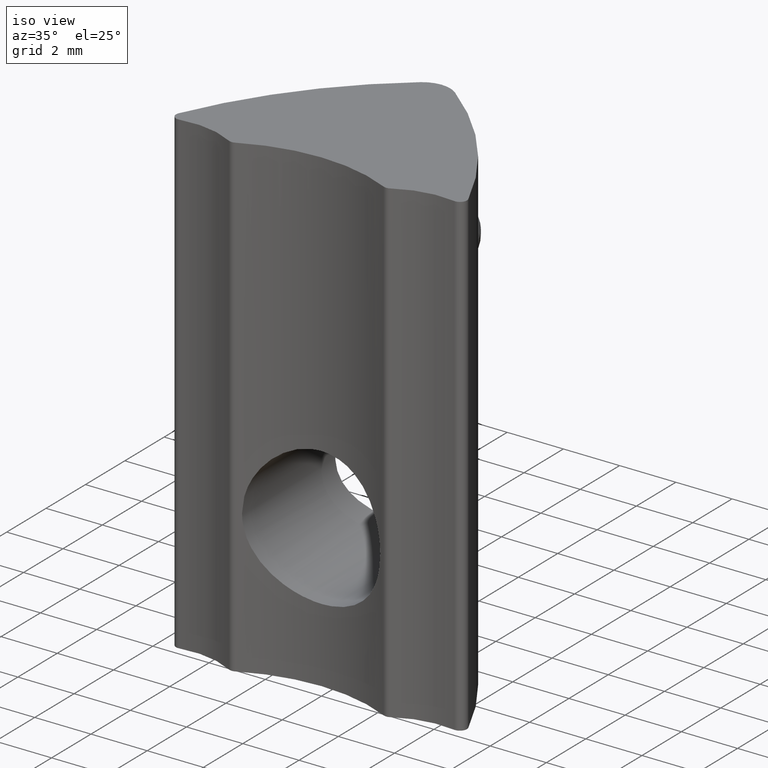
[diagram: clean part render]
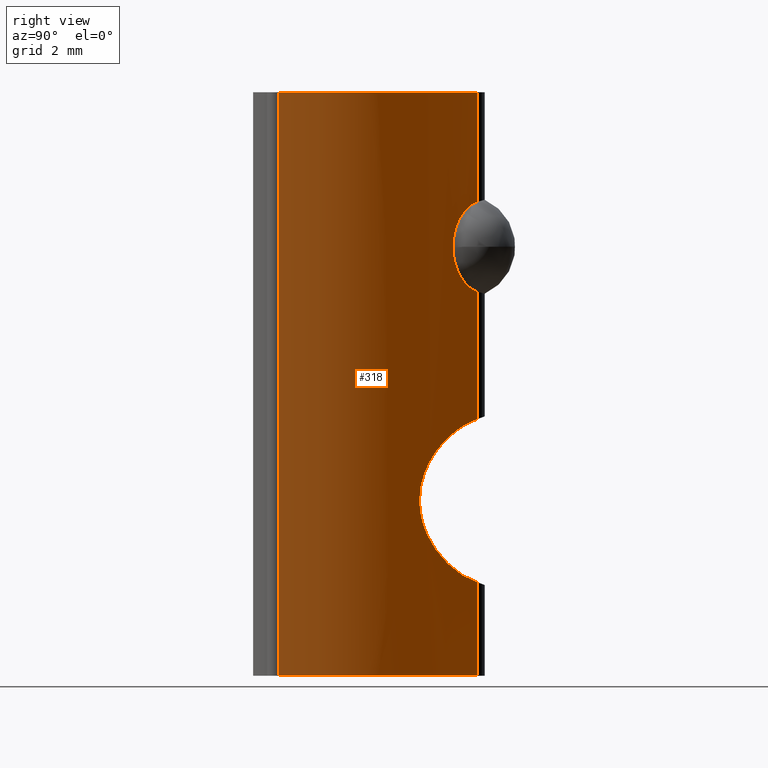
[diagram: tour spotlight — one face highlighted and labeled with its STEP entity id]
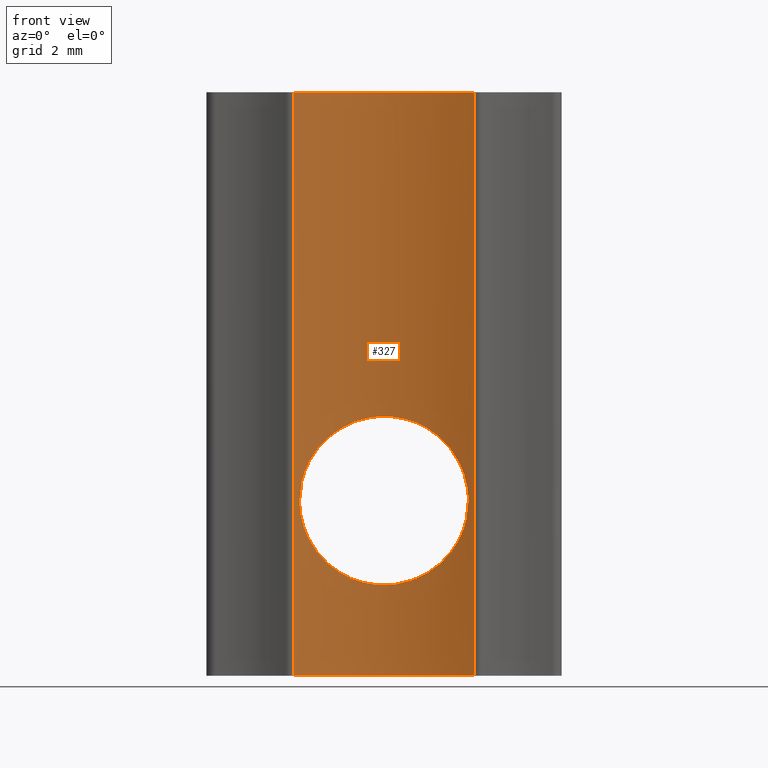
[diagram: tour spotlight — one face highlighted and labeled with its STEP entity id]
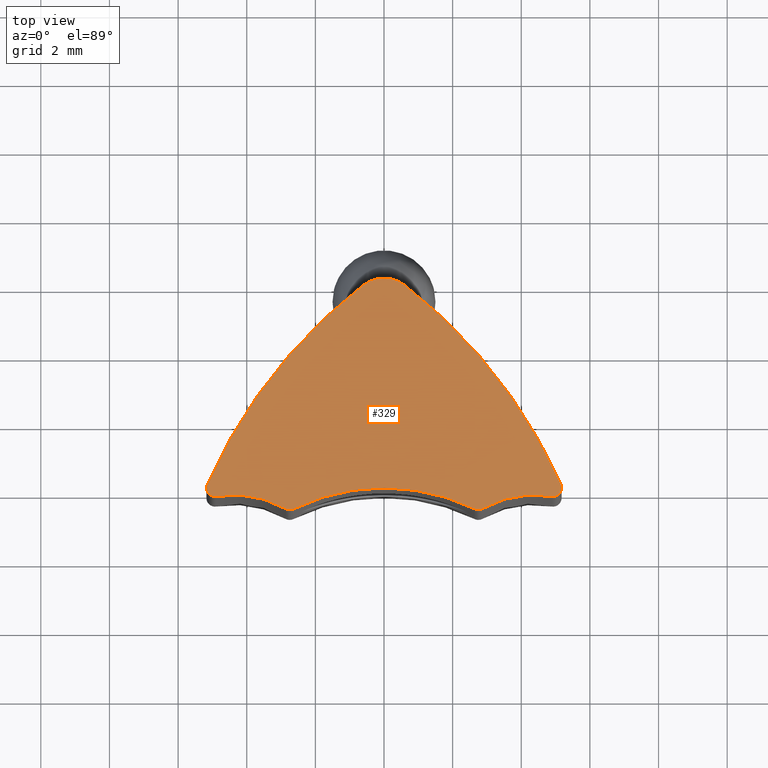
[diagram: tour spotlight — one face highlighted and labeled with its STEP entity id]
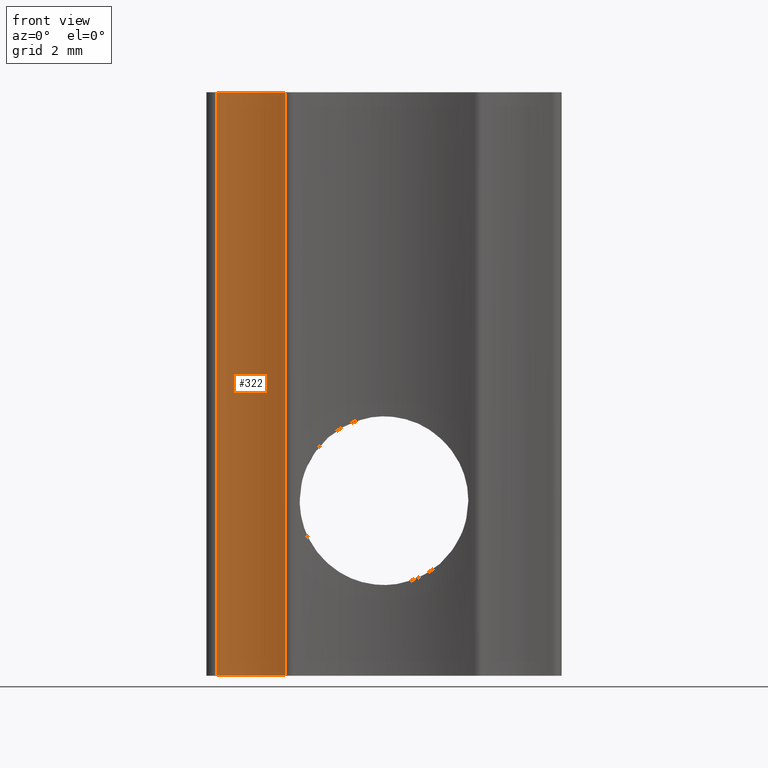
[diagram: tour spotlight — one face highlighted and labeled with its STEP entity id]
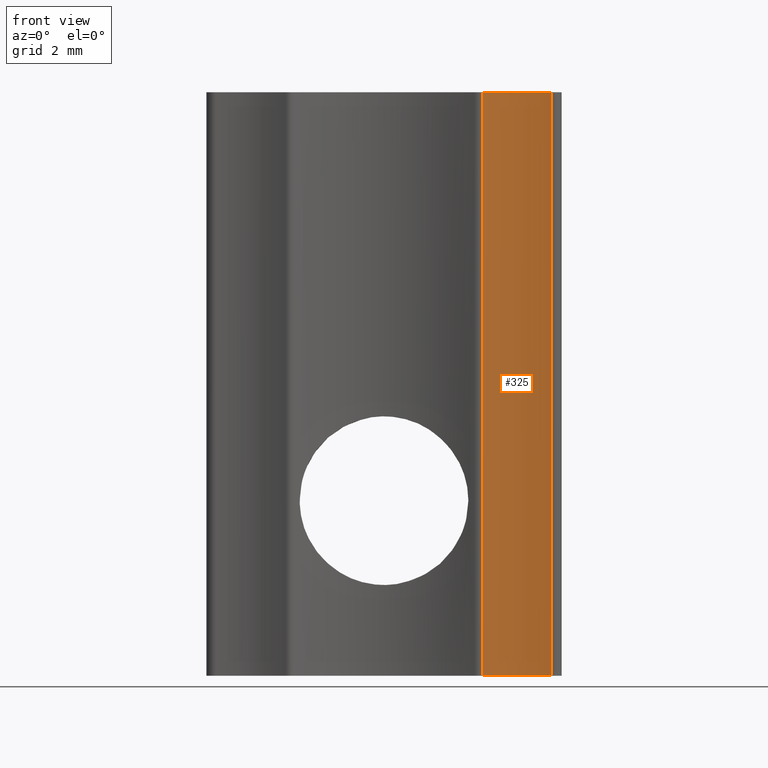
[diagram: tour spotlight — one face highlighted and labeled with its STEP entity id]
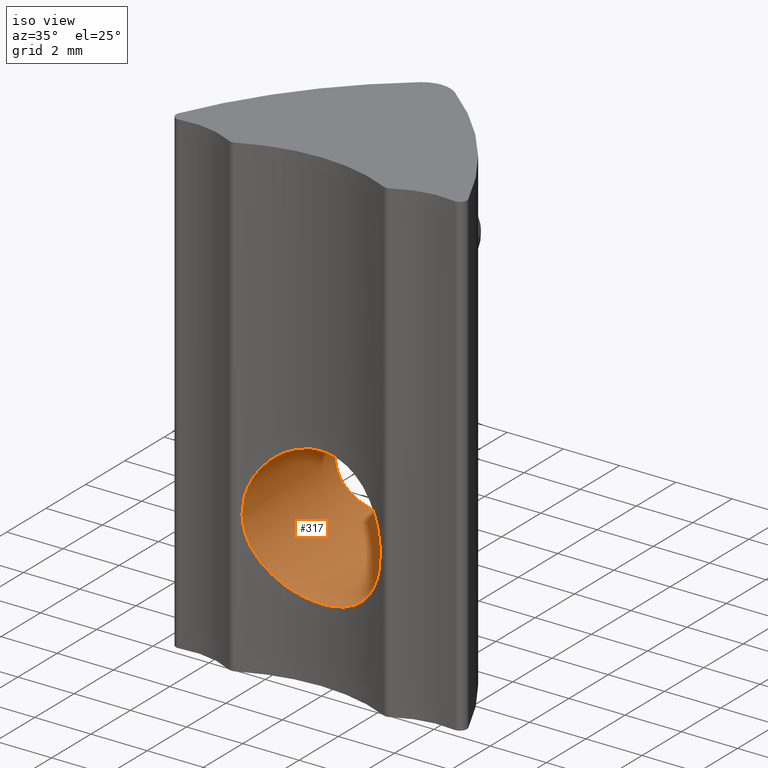
[diagram: tour spotlight — one face highlighted and labeled with its STEP entity id]
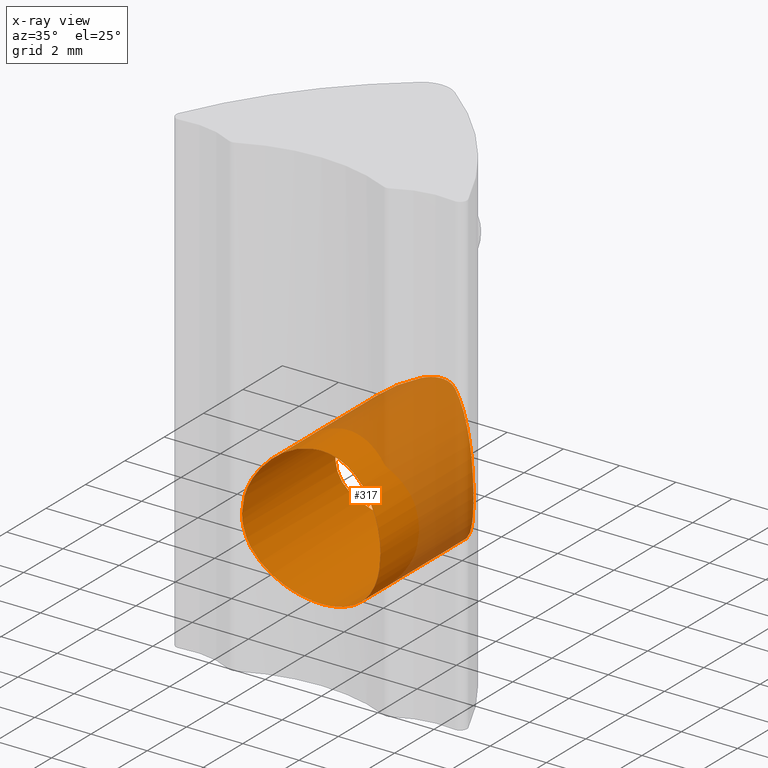
[diagram: x-ray of the same camera — body ghosted, this tour face saturated]
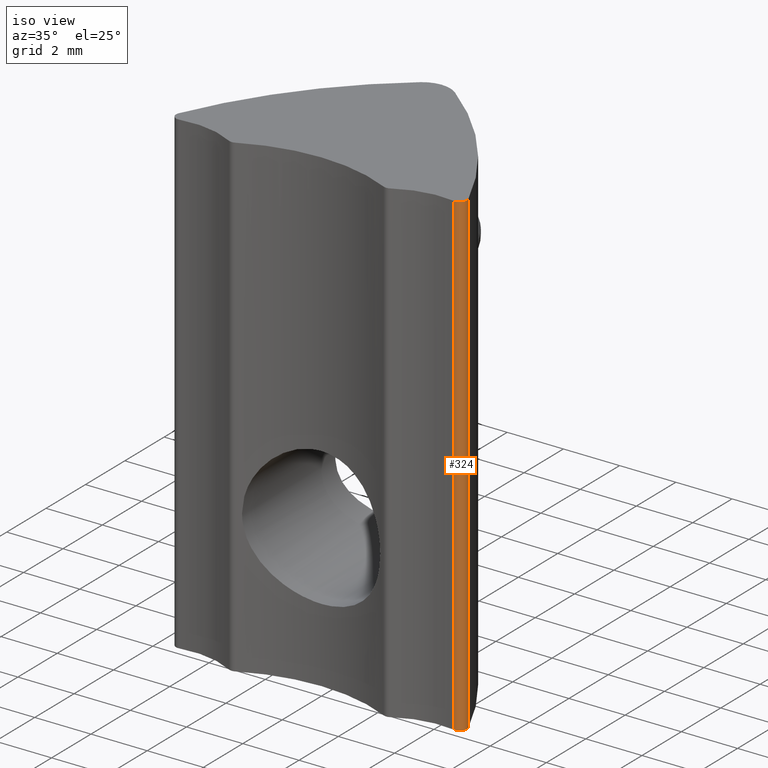
[diagram: tour spotlight — one face highlighted and labeled with its STEP entity id]
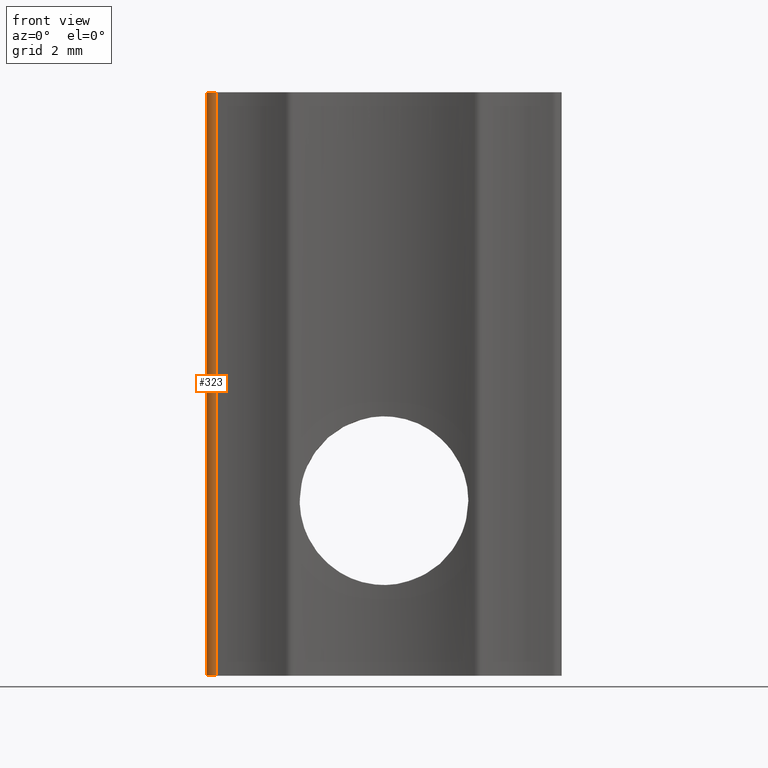
[diagram: tour spotlight — one face highlighted and labeled with its STEP entity id]
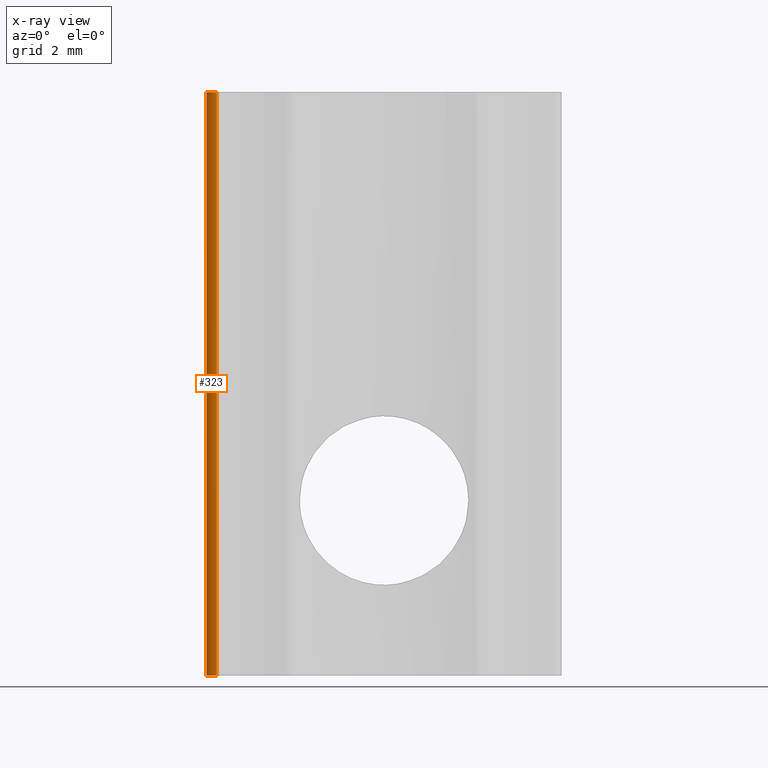
[diagram: x-ray of the same camera — body ghosted, this tour face saturated]
A machine part: a face-by-face anatomy tour. The part has 16 B-rep faces; the first image is the clean iso view, then the 8 largest visible faces are spotlighted one at a time (largest first), each with its STEP entity span.

Face 1 — right view, entity #318. In plain terms, the highlighted cylindrical surface (partial cylindrical patch) has radius 15 mm, axis along (0, 0, 1).
Definition (entity closure, byte-faithful):
#20=LINE('',#585,#35);
#22=LINE('',#680,#37);
#23=LINE('',#684,#38);
#24=LINE('',#687,#39);
#35=VECTOR('',#408,10.);
#37=VECTOR('',#414,10.);
#38=VECTOR('',#417,10.);
#39=VECTOR('',#420,10.);
#49=CYLINDRICAL_SURFACE('',#360,15.);
#61=B_SPLINE_CURVE_WITH_KNOTS('',3,(#488,#489,#490,#491,#492,#493,#494,
#495,#496,#497,#498,#499,#500,#501,#502,#503,#504,#505),.UNSPECIFIED.,.F.,
 .F.,(4,2,2,2,2,2,2,2,4),(0.224927419825381,0.268885237807746,0.310193641972784,
0.356110090594977,0.40202653921717,0.447942987839362,0.493859436461555,
0.535167840626593,0.579125658608958),.UNSPECIFIED.);
#68=B_SPLINE_CURVE_WITH_KNOTS('',3,(#601,#602,#603,#604,#605,#606,#607,
#608,#609,#610,#611,#612),.UNSPECIFIED.,.F.,.F.,(4,2,2,2,2,4),(0.831506789486782,
0.878376412105094,0.925246034723407,1.01898527996003,1.1408115051664,1.18878506140481),
 .UNSPECIFIED.);
#71=B_SPLINE_CURVE_WITH_KNOTS('',3,(#653,#654,#655,#656,#657,#658,#659,
#660,#661,#662,#663,#664),.UNSPECIFIED.,.F.,.F.,(4,2,2,2,2,4),(0.474228517568755,
0.522202073807163,0.644028299013532,0.737767544250157,0.784637166868469,
0.831506789486782),.UNSPECIFIED.);
#78=FACE_OUTER_BOUND('',#95,.T.);
#95=EDGE_LOOP('',(#243,#244,#245,#246,#247,#248,#249,#250,#251));
#111=CIRCLE('',#361,15.);
#112=CIRCLE('',#362,15.);
#131=VERTEX_POINT('',#486);
#132=VERTEX_POINT('',#487);
#141=VERTEX_POINT('',#584);
#143=VERTEX_POINT('',#600);
#146=VERTEX_POINT('',#652);
#148=VERTEX_POINT('',#679);
#149=VERTEX_POINT('',#681);
#150=VERTEX_POINT('',#683);
#151=VERTEX_POINT('',#685);
#165=EDGE_CURVE('',#131,#132,#61,.T.);
#176=EDGE_CURVE('',#141,#131,#20,.T.);
#179=EDGE_CURVE('',#143,#141,#68,.T.);
#183=EDGE_CURVE('',#146,#143,#71,.T.);
#186=EDGE_CURVE('',#132,#148,#22,.T.);
#187=EDGE_CURVE('',#149,#148,#111,.T.);
#188=EDGE_CURVE('',#150,#149,#23,.T.);
#189=EDGE_CURVE('',#151,#150,#112,.T.);
#190=EDGE_CURVE('',#151,#146,#24,.T.);
#243=ORIENTED_EDGE('',*,*,#165,.T.);
#244=ORIENTED_EDGE('',*,*,#186,.T.);
#245=ORIENTED_EDGE('',*,*,#187,.F.);
#246=ORIENTED_EDGE('',*,*,#188,.F.);
#247=ORIENTED_EDGE('',*,*,#189,.F.);
#248=ORIENTED_EDGE('',*,*,#190,.T.);
#249=ORIENTED_EDGE('',*,*,#183,.T.);
#250=ORIENTED_EDGE('',*,*,#179,.T.);
#251=ORIENTED_EDGE('',*,*,#176,.T.);
#318=ADVANCED_FACE('',(#78),#49,.T.);
#360=AXIS2_PLACEMENT_3D('',#678,#412,#413);
#361=AXIS2_PLACEMENT_3D('',#682,#415,#416);
#362=AXIS2_PLACEMENT_3D('',#686,#418,#419);
#408=DIRECTION('',(0.,0.,1.));
#412=DIRECTION('center_axis',(0.,0.,1.));
#413=DIRECTION('ref_axis',(-0.914724473440414,-0.404078133148971,0.));
#414=DIRECTION('',(0.,0.,1.));
#415=DIRECTION('center_axis',(0.,0.,1.));
#416=DIRECTION('ref_axis',(-0.914724473440414,-0.404078133148971,0.));
#417=DIRECTION('',(0.,0.,1.));
#418=DIRECTION('center_axis',(0.,0.,-1.));
#419=DIRECTION('ref_axis',(-0.914724473440414,-0.404078133148971,0.));
#420=DIRECTION('',(0.,0.,1.));
#486=CARTESIAN_POINT('',(0.611941855946153,5.9033888333115,11.1912583852797));
#487=CARTESIAN_POINT('',(0.611941855946153,5.9033888333115,13.8087416147203));
#488=CARTESIAN_POINT('Ctrl Pts',(0.611941855946152,5.9033888333115,11.1912583852797));
#489=CARTESIAN_POINT('Ctrl Pts',(0.734621195394697,5.80846866472019,11.2193639228349));
#490=CARTESIAN_POINT('Ctrl Pts',(0.855099179531908,5.71189845083683,11.2771450102573));
#491=CARTESIAN_POINT('Ctrl Pts',(1.04605820580299,5.55504918070396,11.4175529376326));
#492=CARTESIAN_POINT('Ctrl Pts',(1.14446349483087,5.47192128164891,11.521033851644));
#493=CARTESIAN_POINT('Ctrl Pts',(1.29158328291991,5.34538174011869,11.7375489539689));
#494=CARTESIAN_POINT('Ctrl Pts',(1.35821350391953,5.28662061536966,11.8783938509476));
#495=CARTESIAN_POINT('Ctrl Pts',(1.44610736328997,5.20843811836978,12.1830866812942));
#496=CARTESIAN_POINT('Ctrl Pts',(1.46743244767338,5.18912701707077,12.3469451712594));
#497=CARTESIAN_POINT('Ctrl Pts',(1.46743244767338,5.18912701707077,12.6530548287406));
#498=CARTESIAN_POINT('Ctrl Pts',(1.44610736328997,5.20843811836978,12.8169133187058));
#499=CARTESIAN_POINT('Ctrl Pts',(1.35821350391953,5.28662061536966,13.1216061490524));
#500=CARTESIAN_POINT('Ctrl Pts',(1.29158328291991,5.34538174011869,13.2624510460311));
#501=CARTESIAN_POINT('Ctrl Pts',(1.14446349483087,5.47192128164891,13.4789661483561));
#502=CARTESIAN_POINT('Ctrl Pts',(1.04605820580299,5.55504918070396,13.5824470623674));
#503=CARTESIAN_POINT('Ctrl Pts',(0.855099179531908,5.71189845083683,13.7228549897427));
#504=CARTESIAN_POINT('Ctrl Pts',(0.734621195394697,5.80846866472019,13.7806360771651));
#505=CARTESIAN_POINT('Ctrl Pts',(0.611941855946152,5.9033888333115,13.8087416147203));
#584=CARTESIAN_POINT('',(0.611941855946153,5.9033888333115,7.48112356146026));
#585=CARTESIAN_POINT('',(0.611941855946153,5.9033888333115,0.));
#600=CARTESIAN_POINT('',(2.4585,4.21011049228199,5.1));
#601=CARTESIAN_POINT('Ctrl Pts',(2.4585,4.21011049228199,5.1));
#602=CARTESIAN_POINT('Ctrl Pts',(2.4585,4.21011049228199,5.25623207539437));
#603=CARTESIAN_POINT('Ctrl Pts',(2.44338085424677,4.22657146188145,5.41424509713069));
#604=CARTESIAN_POINT('Ctrl Pts',(2.38357872607336,4.29083181567065,5.722424647206));
#605=CARTESIAN_POINT('Ctrl Pts',(2.33892792276691,4.33855789103553,5.87261270037443));
#606=CARTESIAN_POINT('Ctrl Pts',(2.16865803096752,4.51690221013729,6.29762858531807));
#607=CARTESIAN_POINT('Ctrl Pts',(2.00493907963629,4.68360351731936,6.54691222213902));
#608=CARTESIAN_POINT('Ctrl Pts',(1.6010327932912,5.07196448957157,6.99674755108));
#609=CARTESIAN_POINT('Ctrl Pts',(1.31423187295748,5.33261972492726,7.20645446882104));
#610=CARTESIAN_POINT('Ctrl Pts',(0.87268596070681,5.6981082650684,7.40244877372032));
#611=CARTESIAN_POINT('Ctrl Pts',(0.743381203158351,5.80169082081,7.44734403007464));
#612=CARTESIAN_POINT('Ctrl Pts',(0.611941855946151,5.9033888333115,7.48112356146026));
#652=CARTESIAN_POINT('',(0.611941855946153,5.9033888333115,2.71887643853974));
#653=CARTESIAN_POINT('Ctrl Pts',(0.611941855946151,5.9033888333115,2.71887643853974));
#654=CARTESIAN_POINT('Ctrl Pts',(0.743381203158351,5.80169082081,2.75265596992536));
#655=CARTESIAN_POINT('Ctrl Pts',(0.872685960706809,5.69810826506841,2.79755122627968));
#656=CARTESIAN_POINT('Ctrl Pts',(1.31423187295748,5.33261972492727,2.99354553117896));
#657=CARTESIAN_POINT('Ctrl Pts',(1.60103279329119,5.07196448957158,3.20325244892));
#658=CARTESIAN_POINT('Ctrl Pts',(2.00493907963629,4.68360351731936,3.65308777786098));
#659=CARTESIAN_POINT('Ctrl Pts',(2.16865803096752,4.51690221013729,3.90237141468192));
#660=CARTESIAN_POINT('Ctrl Pts',(2.33892792276691,4.33855789103553,4.32738729962557));
#661=CARTESIAN_POINT('Ctrl Pts',(2.38357872607336,4.29083181567065,4.477575352794));
#662=CARTESIAN_POINT('Ctrl Pts',(2.44338085424677,4.22657146188145,4.78575490286931));
#663=CARTESIAN_POINT('Ctrl Pts',(2.4585,4.21011049228199,4.94376792460563));
#664=CARTESIAN_POINT('Ctrl Pts',(2.4585,4.21011049228199,5.1));
#678=CARTESIAN_POINT('Origin',(-8.5671859832461,-5.96015246394733,0.));
#679=CARTESIAN_POINT('',(0.611941855946153,5.9033888333115,17.));
#680=CARTESIAN_POINT('',(0.611941855946153,5.9033888333115,0.));
#681=CARTESIAN_POINT('',(5.1536811183601,0.101019533287243,17.));
#682=CARTESIAN_POINT('Origin',(-8.5671859832461,-5.96015246394733,17.));
#683=CARTESIAN_POINT('',(5.1536811183601,0.101019533287243,0.));
#684=CARTESIAN_POINT('',(5.1536811183601,0.101019533287243,0.));
#685=CARTESIAN_POINT('',(0.611941855946153,5.9033888333115,0.));
#686=CARTESIAN_POINT('Origin',(-8.5671859832461,-5.96015246394733,0.));
#687=CARTESIAN_POINT('',(0.611941855946153,5.9033888333115,0.));

Face 2 — front view, entity #327. In plain terms, the highlighted cylindrical surface (partial cylindrical patch) has radius 6 mm, axis along (0, 0, 1).
Definition (entity closure, byte-faithful):
#25=LINE('',#697,#40);
#30=LINE('',#727,#45);
#40=VECTOR('',#433,10.);
#45=VECTOR('',#470,10.);
#58=CYLINDRICAL_SURFACE('',#385,6.);
#60=FACE_BOUND('',#105,.T.);
#69=B_SPLINE_CURVE_WITH_KNOTS('',3,(#616,#617,#618,#619,#620,#621,#622,
#623,#624,#625,#626,#627,#628,#629,#630,#631,#632,#633),.UNSPECIFIED.,.F.,
 .F.,(4,2,2,2,2,2,2,2,4),(0.,0.0938733164659279,0.187746632931856,0.281514503510094,
0.375282374088332,0.46905024466657,0.562818115244808,0.656691431710735,
0.750564748176663),.UNSPECIFIED.);
#70=B_SPLINE_CURVE_WITH_KNOTS('',3,(#634,#635,#636,#637,#638,#639,#640,
#641,#642,#643,#644,#645,#646,#647,#648,#649,#650,#651),.UNSPECIFIED.,.F.,
 .F.,(4,2,2,2,2,2,2,2,4),(0.750564748176663,0.844438064642591,0.938311381108519,
1.03207925168676,1.12584712226499,1.21961499284323,1.31338286342147,1.4072561798874,
1.50112949635333),.UNSPECIFIED.);
#87=FACE_OUTER_BOUND('',#104,.T.);
#104=EDGE_LOOP('',(#285,#286,#287,#288));
#105=EDGE_LOOP('',(#289,#290));
#127=CIRCLE('',#386,6.);
#128=CIRCLE('',#387,6.);
#144=VERTEX_POINT('',#613);
#145=VERTEX_POINT('',#615);
#152=VERTEX_POINT('',#693);
#154=VERTEX_POINT('',#696);
#162=VERTEX_POINT('',#723);
#163=VERTEX_POINT('',#725);
#181=EDGE_CURVE('',#145,#144,#69,.T.);
#182=EDGE_CURVE('',#144,#145,#70,.T.);
#194=EDGE_CURVE('',#152,#154,#25,.T.);
#210=EDGE_CURVE('',#162,#163,#30,.T.);
#211=EDGE_CURVE('',#162,#152,#127,.T.);
#212=EDGE_CURVE('',#154,#163,#128,.T.);
#285=ORIENTED_EDGE('',*,*,#211,.F.);
#286=ORIENTED_EDGE('',*,*,#210,.T.);
#287=ORIENTED_EDGE('',*,*,#212,.F.);
#288=ORIENTED_EDGE('',*,*,#194,.F.);
#289=ORIENTED_EDGE('',*,*,#181,.T.);
#290=ORIENTED_EDGE('',*,*,#182,.T.);
#327=ADVANCED_FACE('',(#87,#60),#58,.F.);
#385=AXIS2_PLACEMENT_3D('',#728,#471,#472);
#386=AXIS2_PLACEMENT_3D('',#729,#473,#474);
#387=AXIS2_PLACEMENT_3D('',#730,#475,#476);
#433=DIRECTION('',(0.,0.,1.));
#470=DIRECTION('',(0.,0.,1.));
#471=DIRECTION('center_axis',(0.,0.,1.));
#472=DIRECTION('ref_axis',(0.44,0.897997772825746,0.));
#473=DIRECTION('center_axis',(0.,0.,1.));
#474=DIRECTION('ref_axis',(0.44,0.897997772825746,0.));
#475=DIRECTION('center_axis',(0.,0.,-1.));
#476=DIRECTION('ref_axis',(0.44,0.897997772825746,0.));
#613=CARTESIAN_POINT('',(2.4585,-0.526812834371551,5.1));
#615=CARTESIAN_POINT('',(-2.4585,-0.526812834371548,5.1));
#616=CARTESIAN_POINT('Ctrl Pts',(-2.4585,-0.526812834371548,5.1));
#617=CARTESIAN_POINT('Ctrl Pts',(-2.4585,-0.526812834371548,5.41291105488643));
#618=CARTESIAN_POINT('Ctrl Pts',(-2.39520706205524,-0.497137099926396,5.74373276968248));
#619=CARTESIAN_POINT('Ctrl Pts',(-2.14327278939724,-0.394208587422375,6.3481154372216));
#620=CARTESIAN_POINT('Ctrl Pts',(-1.95478222574452,-0.322859166779189,6.62206181734973));
#621=CARTESIAN_POINT('Ctrl Pts',(-1.52230485013744,-0.191938809259181,7.05453919295682));
#622=CARTESIAN_POINT('Ctrl Pts',(-1.24826729799008,-0.123301351377166,7.2432135883752));
#623=CARTESIAN_POINT('Ctrl Pts',(-0.643525851930762,-0.0267569323985473,
7.4952892129804));
#624=CARTESIAN_POINT('Ctrl Pts',(-0.312559568594124,1.07828172186431E-16,
7.5585));
#625=CARTESIAN_POINT('Ctrl Pts',(0.312559568594129,-1.07828172186431E-16,
7.5585));
#626=CARTESIAN_POINT('Ctrl Pts',(0.643525851930766,-0.0267569323985483,
7.4952892129804));
#627=CARTESIAN_POINT('Ctrl Pts',(1.24826729799009,-0.123301351377168,7.2432135883752));
#628=CARTESIAN_POINT('Ctrl Pts',(1.52230485013744,-0.191938809259183,7.05453919295682));
#629=CARTESIAN_POINT('Ctrl Pts',(1.95478222574453,-0.322859166779191,6.62206181734973));
#630=CARTESIAN_POINT('Ctrl Pts',(2.14327278939724,-0.394208587422377,6.3481154372216));
#631=CARTESIAN_POINT('Ctrl Pts',(2.39520706205524,-0.497137099926398,5.74373276968248));
#632=CARTESIAN_POINT('Ctrl Pts',(2.4585,-0.52681283437155,5.41291105488643));
#633=CARTESIAN_POINT('Ctrl Pts',(2.4585,-0.52681283437155,5.1));
#634=CARTESIAN_POINT('Ctrl Pts',(2.4585,-0.52681283437155,5.1));
#635=CARTESIAN_POINT('Ctrl Pts',(2.4585,-0.52681283437155,4.78708894511357));
#636=CARTESIAN_POINT('Ctrl Pts',(2.39520706205524,-0.497137099926398,4.45626723031752));
#637=CARTESIAN_POINT('Ctrl Pts',(2.14327278939724,-0.394208587422377,3.8518845627784));
#638=CARTESIAN_POINT('Ctrl Pts',(1.95478222574453,-0.322859166779191,3.57793818265027));
#639=CARTESIAN_POINT('Ctrl Pts',(1.52230485013744,-0.191938809259183,3.14546080704319));
#640=CARTESIAN_POINT('Ctrl Pts',(1.24826729799009,-0.123301351377168,2.9567864116248));
#641=CARTESIAN_POINT('Ctrl Pts',(0.643525851930767,-0.0267569323985481,
2.7047107870196));
#642=CARTESIAN_POINT('Ctrl Pts',(0.312559568594129,-1.39196589600847E-16,
2.6415));
#643=CARTESIAN_POINT('Ctrl Pts',(-0.312559568594124,1.39196589600847E-16,
2.6415));
#644=CARTESIAN_POINT('Ctrl Pts',(-0.643525851930761,-0.0267569323985472,
2.7047107870196));
#645=CARTESIAN_POINT('Ctrl Pts',(-1.24826729799008,-0.123301351377166,2.9567864116248));
#646=CARTESIAN_POINT('Ctrl Pts',(-1.52230485013744,-0.191938809259181,3.14546080704319));
#647=CARTESIAN_POINT('Ctrl Pts',(-1.95478222574452,-0.322859166779189,3.57793818265027));
#648=CARTESIAN_POINT('Ctrl Pts',(-2.14327278939724,-0.394208587422375,3.8518845627784));
#649=CARTESIAN_POINT('Ctrl Pts',(-2.39520706205524,-0.497137099926395,4.45626723031752));
#650=CARTESIAN_POINT('Ctrl Pts',(-2.4585,-0.526812834371547,4.78708894511357));
#651=CARTESIAN_POINT('Ctrl Pts',(-2.4585,-0.526812834371547,5.1));
#693=CARTESIAN_POINT('',(-2.64,-0.612013363045524,0.));
#696=CARTESIAN_POINT('',(-2.64,-0.612013363045524,17.));
#697=CARTESIAN_POINT('',(-2.64,-0.612013363045524,0.));
#723=CARTESIAN_POINT('',(2.64,-0.612013363045523,0.));
#725=CARTESIAN_POINT('',(2.64,-0.612013363045523,17.));
#727=CARTESIAN_POINT('',(2.64,-0.612013363045523,0.));
#728=CARTESIAN_POINT('Origin',(0.,-6.,0.));
#729=CARTESIAN_POINT('Origin',(0.,-6.,0.));
#730=CARTESIAN_POINT('Origin',(0.,-6.,17.));

Face 3 — top view, entity #329. In plain terms, the highlighted planar face has unit normal (0, 0, 1).
Definition (entity closure, byte-faithful):
#15=PLANE('',#389);
#89=FACE_OUTER_BOUND('',#107,.T.);
#107=EDGE_LOOP('',(#301,#302,#303,#304,#305,#306,#307,#308,#309,#310));
#110=CIRCLE('',#357,15.);
#111=CIRCLE('',#361,15.);
#113=CIRCLE('',#364,1.);
#116=CIRCLE('',#369,0.25);
#118=CIRCLE('',#372,3.);
#120=CIRCLE('',#375,0.25);
#122=CIRCLE('',#378,0.25);
#124=CIRCLE('',#381,3.);
#126=CIRCLE('',#384,0.25);
#128=CIRCLE('',#387,6.);
#139=VERTEX_POINT('',#578);
#140=VERTEX_POINT('',#580);
#148=VERTEX_POINT('',#679);
#149=VERTEX_POINT('',#681);
#154=VERTEX_POINT('',#696);
#155=VERTEX_POINT('',#698);
#157=VERTEX_POINT('',#704);
#159=VERTEX_POINT('',#713);
#161=VERTEX_POINT('',#719);
#163=VERTEX_POINT('',#725);
#174=EDGE_CURVE('',#140,#139,#110,.T.);
#187=EDGE_CURVE('',#149,#148,#111,.T.);
#191=EDGE_CURVE('',#148,#140,#113,.T.);
#195=EDGE_CURVE('',#155,#154,#116,.T.);
#198=EDGE_CURVE('',#157,#155,#118,.T.);
#201=EDGE_CURVE('',#139,#157,#120,.T.);
#203=EDGE_CURVE('',#159,#149,#122,.T.);
#206=EDGE_CURVE('',#161,#159,#124,.T.);
#209=EDGE_CURVE('',#163,#161,#126,.T.);
#212=EDGE_CURVE('',#154,#163,#128,.T.);
#301=ORIENTED_EDGE('',*,*,#212,.T.);
#302=ORIENTED_EDGE('',*,*,#209,.T.);
#303=ORIENTED_EDGE('',*,*,#206,.T.);
#304=ORIENTED_EDGE('',*,*,#203,.T.);
#305=ORIENTED_EDGE('',*,*,#187,.T.);
#306=ORIENTED_EDGE('',*,*,#191,.T.);
#307=ORIENTED_EDGE('',*,*,#174,.T.);
#308=ORIENTED_EDGE('',*,*,#201,.T.);
#309=ORIENTED_EDGE('',*,*,#198,.T.);
#310=ORIENTED_EDGE('',*,*,#195,.T.);
#329=ADVANCED_FACE('',(#89),#15,.T.);
#357=AXIS2_PLACEMENT_3D('',#581,#403,#404);
#361=AXIS2_PLACEMENT_3D('',#682,#415,#416);
#364=AXIS2_PLACEMENT_3D('',#689,#423,#424);
#369=AXIS2_PLACEMENT_3D('',#699,#434,#435);
#372=AXIS2_PLACEMENT_3D('',#705,#441,#442);
#375=AXIS2_PLACEMENT_3D('',#709,#448,#449);
#378=AXIS2_PLACEMENT_3D('',#714,#454,#455);
#381=AXIS2_PLACEMENT_3D('',#720,#461,#462);
#384=AXIS2_PLACEMENT_3D('',#726,#468,#469);
#387=AXIS2_PLACEMENT_3D('',#730,#475,#476);
#389=AXIS2_PLACEMENT_3D('',#732,#479,#480);
#403=DIRECTION('center_axis',(0.,0.,1.));
#404=DIRECTION('ref_axis',(0.61194185594615,-0.790902753150589,0.));
#415=DIRECTION('center_axis',(0.,0.,1.));
#416=DIRECTION('ref_axis',(-0.914724473440414,-0.404078133148971,0.));
#423=DIRECTION('center_axis',(0.,0.,1.));
#424=DIRECTION('ref_axis',(-0.61194185594615,-0.790902753150589,0.));
#434=DIRECTION('center_axis',(0.,0.,1.));
#435=DIRECTION('ref_axis',(0.499578080536772,0.866268862101827,0.));
#441=DIRECTION('center_axis',(0.,0.,-1.));
#442=DIRECTION('ref_axis',(0.499578080536772,0.866268862101827,0.));
#448=DIRECTION('center_axis',(0.,0.,1.));
#449=DIRECTION('ref_axis',(0.914724473440414,-0.404078133148971,0.));
#454=DIRECTION('center_axis',(0.,0.,1.));
#455=DIRECTION('ref_axis',(0.169652688694,0.985503914360008,0.));
#461=DIRECTION('center_axis',(0.,0.,-1.));
#462=DIRECTION('ref_axis',(0.169652688693997,0.985503914360008,0.));
#468=DIRECTION('center_axis',(0.,0.,1.));
#469=DIRECTION('ref_axis',(0.440000000000006,0.897997772825743,0.));
#475=DIRECTION('center_axis',(0.,0.,-1.));
#476=DIRECTION('ref_axis',(0.44,0.897997772825746,0.));
#479=DIRECTION('center_axis',(0.,0.,1.));
#480=DIRECTION('ref_axis',(1.,0.,0.));
#578=CARTESIAN_POINT('',(-5.1536811183601,0.101019533287241,17.));
#580=CARTESIAN_POINT('',(-0.611941855946148,5.9033888333115,17.));
#581=CARTESIAN_POINT('Origin',(8.56718598324611,-5.96015246394733,17.));
#679=CARTESIAN_POINT('',(0.611941855946153,5.9033888333115,17.));
#681=CARTESIAN_POINT('',(5.1536811183601,0.101019533287243,17.));
#682=CARTESIAN_POINT('Origin',(-8.5671859832461,-5.96015246394733,17.));
#689=CARTESIAN_POINT('Origin',(3.9154830615245E-25,5.11248608016091,17.));
#696=CARTESIAN_POINT('',(-2.64,-0.612013363045524,17.));
#698=CARTESIAN_POINT('',(-2.87489452013419,-0.604081135364544,17.));
#699=CARTESIAN_POINT('Origin',(-2.75,-0.387513919839087,17.));
#704=CARTESIAN_POINT('',(-4.8825868278265,-0.246375978590002,17.));
#705=CARTESIAN_POINT('Origin',(-4.37362876174451,-3.20288772167003,17.));
#709=CARTESIAN_POINT('Origin',(-4.925,0.,17.));
#713=CARTESIAN_POINT('',(4.8825868278265,-0.246375978590002,17.));
#714=CARTESIAN_POINT('Origin',(4.925,0.,17.));
#719=CARTESIAN_POINT('',(2.87489452013419,-0.604081135364544,17.));
#720=CARTESIAN_POINT('Origin',(4.37362876174451,-3.20288772167003,17.));
#725=CARTESIAN_POINT('',(2.64,-0.612013363045523,17.));
#726=CARTESIAN_POINT('Origin',(2.75,-0.387513919839088,17.));
#730=CARTESIAN_POINT('Origin',(0.,-6.,17.));
#732=CARTESIAN_POINT('Origin',(2.0921956826649E-15,1.92014880889303,17.));

Face 4 — front view, entity #322. In plain terms, the highlighted cylindrical surface (partial cylindrical patch) has radius 3 mm, axis along (0, 0, 1).
Definition (entity closure, byte-faithful):
#26=LINE('',#700,#41);
#27=LINE('',#706,#42);
#41=VECTOR('',#436,10.);
#42=VECTOR('',#443,10.);
#53=CYLINDRICAL_SURFACE('',#370,3.);
#82=FACE_OUTER_BOUND('',#99,.T.);
#99=EDGE_LOOP('',(#265,#266,#267,#268));
#117=CIRCLE('',#371,3.);
#118=CIRCLE('',#372,3.);
#153=VERTEX_POINT('',#694);
#155=VERTEX_POINT('',#698);
#156=VERTEX_POINT('',#702);
#157=VERTEX_POINT('',#704);
#196=EDGE_CURVE('',#153,#155,#26,.T.);
#197=EDGE_CURVE('',#153,#156,#117,.T.);
#198=EDGE_CURVE('',#157,#155,#118,.T.);
#199=EDGE_CURVE('',#156,#157,#27,.T.);
#265=ORIENTED_EDGE('',*,*,#197,.F.);
#266=ORIENTED_EDGE('',*,*,#196,.T.);
#267=ORIENTED_EDGE('',*,*,#198,.F.);
#268=ORIENTED_EDGE('',*,*,#199,.F.);
#322=ADVANCED_FACE('',(#82),#53,.F.);
#370=AXIS2_PLACEMENT_3D('',#701,#437,#438);
#371=AXIS2_PLACEMENT_3D('',#703,#439,#440);
#372=AXIS2_PLACEMENT_3D('',#705,#441,#442);
#436=DIRECTION('',(0.,0.,1.));
#437=DIRECTION('center_axis',(0.,0.,1.));
#438=DIRECTION('ref_axis',(0.499578080536772,0.866268862101827,0.));
#439=DIRECTION('center_axis',(0.,0.,1.));
#440=DIRECTION('ref_axis',(0.499578080536772,0.866268862101827,0.));
#441=DIRECTION('center_axis',(0.,0.,-1.));
#442=DIRECTION('ref_axis',(0.499578080536772,0.866268862101827,0.));
#443=DIRECTION('',(0.,0.,1.));
#694=CARTESIAN_POINT('',(-2.87489452013419,-0.604081135364544,0.));
#698=CARTESIAN_POINT('',(-2.87489452013419,-0.604081135364544,17.));
#700=CARTESIAN_POINT('',(-2.87489452013419,-0.604081135364544,0.));
#701=CARTESIAN_POINT('Origin',(-4.37362876174451,-3.20288772167003,0.));
#702=CARTESIAN_POINT('',(-4.8825868278265,-0.246375978590002,0.));
#703=CARTESIAN_POINT('Origin',(-4.37362876174451,-3.20288772167003,0.));
#704=CARTESIAN_POINT('',(-4.8825868278265,-0.246375978590002,17.));
#705=CARTESIAN_POINT('Origin',(-4.37362876174451,-3.20288772167003,17.));
#706=CARTESIAN_POINT('',(-4.8825868278265,-0.246375978590002,0.));

Face 5 — front view, entity #325. In plain terms, the highlighted cylindrical surface (partial cylindrical patch) has radius 3 mm, axis along (0, 0, 1).
Definition (entity closure, byte-faithful):
#28=LINE('',#715,#43);
#29=LINE('',#721,#44);
#43=VECTOR('',#456,10.);
#44=VECTOR('',#463,10.);
#56=CYLINDRICAL_SURFACE('',#379,3.);
#85=FACE_OUTER_BOUND('',#102,.T.);
#102=EDGE_LOOP('',(#277,#278,#279,#280));
#123=CIRCLE('',#380,3.);
#124=CIRCLE('',#381,3.);
#158=VERTEX_POINT('',#711);
#159=VERTEX_POINT('',#713);
#160=VERTEX_POINT('',#717);
#161=VERTEX_POINT('',#719);
#204=EDGE_CURVE('',#158,#159,#28,.T.);
#205=EDGE_CURVE('',#158,#160,#123,.T.);
#206=EDGE_CURVE('',#161,#159,#124,.T.);
#207=EDGE_CURVE('',#160,#161,#29,.T.);
#277=ORIENTED_EDGE('',*,*,#205,.F.);
#278=ORIENTED_EDGE('',*,*,#204,.T.);
#279=ORIENTED_EDGE('',*,*,#206,.F.);
#280=ORIENTED_EDGE('',*,*,#207,.F.);
#325=ADVANCED_FACE('',(#85),#56,.F.);
#379=AXIS2_PLACEMENT_3D('',#716,#457,#458);
#380=AXIS2_PLACEMENT_3D('',#718,#459,#460);
#381=AXIS2_PLACEMENT_3D('',#720,#461,#462);
#456=DIRECTION('',(0.,0.,1.));
#457=DIRECTION('center_axis',(0.,0.,1.));
#458=DIRECTION('ref_axis',(0.169652688693997,0.985503914360008,0.));
#459=DIRECTION('center_axis',(0.,0.,1.));
#460=DIRECTION('ref_axis',(0.169652688693997,0.985503914360008,0.));
#461=DIRECTION('center_axis',(0.,0.,-1.));
#462=DIRECTION('ref_axis',(0.169652688693997,0.985503914360008,0.));
#463=DIRECTION('',(0.,0.,1.));
#711=CARTESIAN_POINT('',(4.8825868278265,-0.246375978590002,0.));
#713=CARTESIAN_POINT('',(4.8825868278265,-0.246375978590002,17.));
#715=CARTESIAN_POINT('',(4.8825868278265,-0.246375978590002,0.));
#716=CARTESIAN_POINT('Origin',(4.37362876174451,-3.20288772167003,0.));
#717=CARTESIAN_POINT('',(2.87489452013419,-0.604081135364544,0.));
#718=CARTESIAN_POINT('Origin',(4.37362876174451,-3.20288772167003,0.));
#719=CARTESIAN_POINT('',(2.87489452013419,-0.604081135364544,17.));
#720=CARTESIAN_POINT('Origin',(4.37362876174451,-3.20288772167003,17.));
#721=CARTESIAN_POINT('',(2.87489452013419,-0.604081135364544,0.));

Face 6 — iso view, entity #317. An x-ray twin of the same camera follows (body ghosted, this face saturated) — the face is partly hidden behind the body. In plain terms, the highlighted cylindrical surface (bore or boss wall) has radius 2.4585 mm, axis along (0, 1, 0).
Definition (entity closure, byte-faithful):
#21=LINE('',#614,#36);
#36=VECTOR('',#411,2.4585);
#48=CYLINDRICAL_SURFACE('',#359,2.4585);
#65=B_SPLINE_CURVE_WITH_KNOTS('',3,(#551,#552,#553,#554,#555,#556,#557,
#558,#559,#560,#561,#562,#563,#564,#565,#566,#567,#568,#569,#570,#571,#572,
#573),.UNSPECIFIED.,.F.,.F.,(4,2,2,2,2,3,2,2,2,2,4),(-0.357278271918027,
-0.309304715679619,-0.18747849047325,-0.093739245236625,-0.0468696226183125,
0.,0.0468696226183125,0.0937392452366249,0.18747849047325,0.309304715679619,
0.357278271918027),.UNSPECIFIED.);
#66=B_SPLINE_CURVE_WITH_KNOTS('',3,(#587,#588,#589,#590,#591,#592),
 .UNSPECIFIED.,.F.,.F.,(4,2,4),(0.0890560817213926,0.114482367066578,0.152615468423035),
 .UNSPECIFIED.);
#67=B_SPLINE_CURVE_WITH_KNOTS('',3,(#593,#594,#595,#596,#597,#598),
 .UNSPECIFIED.,.F.,.F.,(4,2,4),(0.152615468423035,0.190748569779492,0.216174855124678),
 .UNSPECIFIED.);
#68=B_SPLINE_CURVE_WITH_KNOTS('',3,(#601,#602,#603,#604,#605,#606,#607,
#608,#609,#610,#611,#612),.UNSPECIFIED.,.F.,.F.,(4,2,2,2,2,4),(0.831506789486782,
0.878376412105094,0.925246034723407,1.01898527996003,1.1408115051664,1.18878506140481),
 .UNSPECIFIED.);
#69=B_SPLINE_CURVE_WITH_KNOTS('',3,(#616,#617,#618,#619,#620,#621,#622,
#623,#624,#625,#626,#627,#628,#629,#630,#631,#632,#633),.UNSPECIFIED.,.F.,
 .F.,(4,2,2,2,2,2,2,2,4),(0.,0.0938733164659279,0.187746632931856,0.281514503510094,
0.375282374088332,0.46905024466657,0.562818115244808,0.656691431710735,
0.750564748176663),.UNSPECIFIED.);
#70=B_SPLINE_CURVE_WITH_KNOTS('',3,(#634,#635,#636,#637,#638,#639,#640,
#641,#642,#643,#644,#645,#646,#647,#648,#649,#650,#651),.UNSPECIFIED.,.F.,
 .F.,(4,2,2,2,2,2,2,2,4),(0.750564748176663,0.844438064642591,0.938311381108519,
1.03207925168676,1.12584712226499,1.21961499284323,1.31338286342147,1.4072561798874,
1.50112949635333),.UNSPECIFIED.);
#71=B_SPLINE_CURVE_WITH_KNOTS('',3,(#653,#654,#655,#656,#657,#658,#659,
#660,#661,#662,#663,#664),.UNSPECIFIED.,.F.,.F.,(4,2,2,2,2,4),(0.474228517568755,
0.522202073807163,0.644028299013532,0.737767544250157,0.784637166868469,
0.831506789486782),.UNSPECIFIED.);
#72=B_SPLINE_CURVE_WITH_KNOTS('',3,(#666,#667,#668,#669,#670,#671),
 .UNSPECIFIED.,.F.,.F.,(4,2,4),(0.457846405269105,0.495979506625562,0.521405791970747),
 .UNSPECIFIED.);
#73=B_SPLINE_CURVE_WITH_KNOTS('',3,(#672,#673,#674,#675,#676,#677),
 .UNSPECIFIED.,.F.,.F.,(4,2,4),(0.394287018567462,0.419713303912647,0.457846405269105),
 .UNSPECIFIED.);
#77=FACE_OUTER_BOUND('',#94,.T.);
#94=EDGE_LOOP('',(#232,#233,#234,#235,#236,#237,#238,#239,#240,#241,#242));
#135=VERTEX_POINT('',#548);
#136=VERTEX_POINT('',#550);
#141=VERTEX_POINT('',#584);
#142=VERTEX_POINT('',#586);
#143=VERTEX_POINT('',#600);
#144=VERTEX_POINT('',#613);
#145=VERTEX_POINT('',#615);
#146=VERTEX_POINT('',#652);
#147=VERTEX_POINT('',#665);
#170=EDGE_CURVE('',#135,#136,#65,.T.);
#177=EDGE_CURVE('',#141,#142,#66,.T.);
#178=EDGE_CURVE('',#142,#135,#67,.T.);
#179=EDGE_CURVE('',#143,#141,#68,.T.);
#180=EDGE_CURVE('',#143,#144,#21,.T.);
#181=EDGE_CURVE('',#145,#144,#69,.T.);
#182=EDGE_CURVE('',#144,#145,#70,.T.);
#183=EDGE_CURVE('',#146,#143,#71,.T.);
#184=EDGE_CURVE('',#147,#146,#72,.T.);
#185=EDGE_CURVE('',#136,#147,#73,.T.);
#232=ORIENTED_EDGE('',*,*,#178,.F.);
#233=ORIENTED_EDGE('',*,*,#177,.F.);
#234=ORIENTED_EDGE('',*,*,#179,.F.);
#235=ORIENTED_EDGE('',*,*,#180,.T.);
#236=ORIENTED_EDGE('',*,*,#181,.F.);
#237=ORIENTED_EDGE('',*,*,#182,.F.);
#238=ORIENTED_EDGE('',*,*,#180,.F.);
#239=ORIENTED_EDGE('',*,*,#183,.F.);
#240=ORIENTED_EDGE('',*,*,#184,.F.);
#241=ORIENTED_EDGE('',*,*,#185,.F.);
#242=ORIENTED_EDGE('',*,*,#170,.F.);
#317=ADVANCED_FACE('',(#77),#48,.F.);
#359=AXIS2_PLACEMENT_3D('',#599,#409,#410);
#409=DIRECTION('center_axis',(0.,1.,0.));
#410=DIRECTION('ref_axis',(-1.,0.,0.));
#411=DIRECTION('',(0.,-1.,0.));
#548=CARTESIAN_POINT('',(-0.611941855946148,5.9033888333115,7.48112356146026));
#550=CARTESIAN_POINT('',(-0.611941855946148,5.9033888333115,2.71887643853974));
#551=CARTESIAN_POINT('Ctrl Pts',(-0.611941855946151,5.9033888333115,7.48112356146026));
#552=CARTESIAN_POINT('Ctrl Pts',(-0.743381203158349,5.80169082081,7.44734403007464));
#553=CARTESIAN_POINT('Ctrl Pts',(-0.872685960706805,5.69810826506841,7.40244877372032));
#554=CARTESIAN_POINT('Ctrl Pts',(-1.31423187295747,5.33261972492727,7.20645446882105));
#555=CARTESIAN_POINT('Ctrl Pts',(-1.60103279329119,5.07196448957158,6.99674755108));
#556=CARTESIAN_POINT('Ctrl Pts',(-2.00493907963628,4.68360351731936,6.54691222213902));
#557=CARTESIAN_POINT('Ctrl Pts',(-2.16865803096752,4.51690221013729,6.29762858531808));
#558=CARTESIAN_POINT('Ctrl Pts',(-2.3389279227669,4.33855789103553,5.87261270037443));
#559=CARTESIAN_POINT('Ctrl Pts',(-2.38357872607336,4.29083181567065,5.722424647206));
#560=CARTESIAN_POINT('Ctrl Pts',(-2.44338085424676,4.22657146188145,5.41424509713069));
#561=CARTESIAN_POINT('Ctrl Pts',(-2.4585,4.210110492282,5.25623207539437));
#562=CARTESIAN_POINT('Ctrl Pts',(-2.4585,4.210110492282,5.1));
#563=CARTESIAN_POINT('Ctrl Pts',(-2.4585,4.210110492282,4.94376792460563));
#564=CARTESIAN_POINT('Ctrl Pts',(-2.44338085424676,4.22657146188145,4.78575490286931));
#565=CARTESIAN_POINT('Ctrl Pts',(-2.38357872607336,4.29083181567065,4.477575352794));
#566=CARTESIAN_POINT('Ctrl Pts',(-2.3389279227669,4.33855789103553,4.32738729962557));
#567=CARTESIAN_POINT('Ctrl Pts',(-2.16865803096751,4.51690221013729,3.90237141468192));
#568=CARTESIAN_POINT('Ctrl Pts',(-2.00493907963628,4.68360351731936,3.65308777786098));
#569=CARTESIAN_POINT('Ctrl Pts',(-1.60103279329119,5.07196448957158,3.20325244892));
#570=CARTESIAN_POINT('Ctrl Pts',(-1.31423187295747,5.33261972492726,2.99354553117896));
#571=CARTESIAN_POINT('Ctrl Pts',(-0.872685960706807,5.6981082650684,2.79755122627968));
#572=CARTESIAN_POINT('Ctrl Pts',(-0.74338120315835,5.80169082081,2.75265596992536));
#573=CARTESIAN_POINT('Ctrl Pts',(-0.61194185594615,5.9033888333115,2.71887643853974));
#584=CARTESIAN_POINT('',(0.611941855946153,5.9033888333115,7.48112356146026));
#586=CARTESIAN_POINT('',(3.91547905559022E-25,6.11248608016091,7.5585));
#587=CARTESIAN_POINT('Ctrl Pts',(0.61194185594615,5.9033888333115,7.48112356146026));
#588=CARTESIAN_POINT('Ctrl Pts',(0.543827692865099,5.95609051781822,7.49862870401005));
#589=CARTESIAN_POINT('Ctrl Pts',(0.466722391562399,6.0013414931028,7.51521980650963));
#590=CARTESIAN_POINT('Ctrl Pts',(0.261720909729993,6.08678440240749,7.54769919407379));
#591=CARTESIAN_POINT('Ctrl Pts',(0.127110337854858,6.11248608016091,7.5585));
#592=CARTESIAN_POINT('Ctrl Pts',(1.73472347597681E-16,6.11248608016091,
7.5585));
#593=CARTESIAN_POINT('Ctrl Pts',(1.38777878078145E-16,6.11248608016091,
7.5585));
#594=CARTESIAN_POINT('Ctrl Pts',(-0.127110337854858,6.11248608016091,7.5585));
#595=CARTESIAN_POINT('Ctrl Pts',(-0.261720909729993,6.08678440240749,7.54769919407379));
#596=CARTESIAN_POINT('Ctrl Pts',(-0.466722391562399,6.0013414931028,7.51521980650963));
#597=CARTESIAN_POINT('Ctrl Pts',(-0.543827692865099,5.95609051781822,7.49862870401005));
#598=CARTESIAN_POINT('Ctrl Pts',(-0.611941855946151,5.9033888333115,7.48112356146026));
#599=CARTESIAN_POINT('Origin',(2.22044604925031E-15,-14.9038171152158,5.1));
#600=CARTESIAN_POINT('',(2.4585,4.21011049228199,5.1));
#601=CARTESIAN_POINT('Ctrl Pts',(2.4585,4.21011049228199,5.1));
#602=CARTESIAN_POINT('Ctrl Pts',(2.4585,4.21011049228199,5.25623207539437));
#603=CARTESIAN_POINT('Ctrl Pts',(2.44338085424677,4.22657146188145,5.41424509713069));
#604=CARTESIAN_POINT('Ctrl Pts',(2.38357872607336,4.29083181567065,5.722424647206));
#605=CARTESIAN_POINT('Ctrl Pts',(2.33892792276691,4.33855789103553,5.87261270037443));
#606=CARTESIAN_POINT('Ctrl Pts',(2.16865803096752,4.51690221013729,6.29762858531807));
#607=CARTESIAN_POINT('Ctrl Pts',(2.00493907963629,4.68360351731936,6.54691222213902));
#608=CARTESIAN_POINT('Ctrl Pts',(1.6010327932912,5.07196448957157,6.99674755108));
#609=CARTESIAN_POINT('Ctrl Pts',(1.31423187295748,5.33261972492726,7.20645446882104));
#610=CARTESIAN_POINT('Ctrl Pts',(0.87268596070681,5.6981082650684,7.40244877372032));
#611=CARTESIAN_POINT('Ctrl Pts',(0.743381203158351,5.80169082081,7.44734403007464));
#612=CARTESIAN_POINT('Ctrl Pts',(0.611941855946151,5.9033888333115,7.48112356146026));
#613=CARTESIAN_POINT('',(2.4585,-0.526812834371551,5.1));
#614=CARTESIAN_POINT('',(2.4585,-14.9038171152158,5.1));
#615=CARTESIAN_POINT('',(-2.4585,-0.526812834371548,5.1));
#616=CARTESIAN_POINT('Ctrl Pts',(-2.4585,-0.526812834371548,5.1));
#617=CARTESIAN_POINT('Ctrl Pts',(-2.4585,-0.526812834371548,5.41291105488643));
#618=CARTESIAN_POINT('Ctrl Pts',(-2.39520706205524,-0.497137099926396,5.74373276968248));
#619=CARTESIAN_POINT('Ctrl Pts',(-2.14327278939724,-0.394208587422375,6.3481154372216));
#620=CARTESIAN_POINT('Ctrl Pts',(-1.95478222574452,-0.322859166779189,6.62206181734973));
#621=CARTESIAN_POINT('Ctrl Pts',(-1.52230485013744,-0.191938809259181,7.05453919295682));
#622=CARTESIAN_POINT('Ctrl Pts',(-1.24826729799008,-0.123301351377166,7.2432135883752));
#623=CARTESIAN_POINT('Ctrl Pts',(-0.643525851930762,-0.0267569323985473,
7.4952892129804));
#624=CARTESIAN_POINT('Ctrl Pts',(-0.312559568594124,1.07828172186431E-16,
7.5585));
#625=CARTESIAN_POINT('Ctrl Pts',(0.312559568594129,-1.07828172186431E-16,
7.5585));
#626=CARTESIAN_POINT('Ctrl Pts',(0.643525851930766,-0.0267569323985483,
7.4952892129804));
#627=CARTESIAN_POINT('Ctrl Pts',(1.24826729799009,-0.123301351377168,7.2432135883752));
#628=CARTESIAN_POINT('Ctrl Pts',(1.52230485013744,-0.191938809259183,7.05453919295682));
#629=CARTESIAN_POINT('Ctrl Pts',(1.95478222574453,-0.322859166779191,6.62206181734973));
#630=CARTESIAN_POINT('Ctrl Pts',(2.14327278939724,-0.394208587422377,6.3481154372216));
#631=CARTESIAN_POINT('Ctrl Pts',(2.39520706205524,-0.497137099926398,5.74373276968248));
#632=CARTESIAN_POINT('Ctrl Pts',(2.4585,-0.52681283437155,5.41291105488643));
#633=CARTESIAN_POINT('Ctrl Pts',(2.4585,-0.52681283437155,5.1));
#634=CARTESIAN_POINT('Ctrl Pts',(2.4585,-0.52681283437155,5.1));
#635=CARTESIAN_POINT('Ctrl Pts',(2.4585,-0.52681283437155,4.78708894511357));
#636=CARTESIAN_POINT('Ctrl Pts',(2.39520706205524,-0.497137099926398,4.45626723031752));
#637=CARTESIAN_POINT('Ctrl Pts',(2.14327278939724,-0.394208587422377,3.8518845627784));
#638=CARTESIAN_POINT('Ctrl Pts',(1.95478222574453,-0.322859166779191,3.57793818265027));
#639=CARTESIAN_POINT('Ctrl Pts',(1.52230485013744,-0.191938809259183,3.14546080704319));
#640=CARTESIAN_POINT('Ctrl Pts',(1.24826729799009,-0.123301351377168,2.9567864116248));
#641=CARTESIAN_POINT('Ctrl Pts',(0.643525851930767,-0.0267569323985481,
2.7047107870196));
#642=CARTESIAN_POINT('Ctrl Pts',(0.312559568594129,-1.39196589600847E-16,
2.6415));
#643=CARTESIAN_POINT('Ctrl Pts',(-0.312559568594124,1.39196589600847E-16,
2.6415));
#644=CARTESIAN_POINT('Ctrl Pts',(-0.643525851930761,-0.0267569323985472,
2.7047107870196));
#645=CARTESIAN_POINT('Ctrl Pts',(-1.24826729799008,-0.123301351377166,2.9567864116248));
#646=CARTESIAN_POINT('Ctrl Pts',(-1.52230485013744,-0.191938809259181,3.14546080704319));
#647=CARTESIAN_POINT('Ctrl Pts',(-1.95478222574452,-0.322859166779189,3.57793818265027));
#648=CARTESIAN_POINT('Ctrl Pts',(-2.14327278939724,-0.394208587422375,3.8518845627784));
#649=CARTESIAN_POINT('Ctrl Pts',(-2.39520706205524,-0.497137099926395,4.45626723031752));
#650=CARTESIAN_POINT('Ctrl Pts',(-2.4585,-0.526812834371547,4.78708894511357));
#651=CARTESIAN_POINT('Ctrl Pts',(-2.4585,-0.526812834371547,5.1));
#652=CARTESIAN_POINT('',(0.611941855946153,5.9033888333115,2.71887643853974));
#653=CARTESIAN_POINT('Ctrl Pts',(0.611941855946151,5.9033888333115,2.71887643853974));
#654=CARTESIAN_POINT('Ctrl Pts',(0.743381203158351,5.80169082081,2.75265596992536));
#655=CARTESIAN_POINT('Ctrl Pts',(0.872685960706809,5.69810826506841,2.79755122627968));
#656=CARTESIAN_POINT('Ctrl Pts',(1.31423187295748,5.33261972492727,2.99354553117896));
#657=CARTESIAN_POINT('Ctrl Pts',(1.60103279329119,5.07196448957158,3.20325244892));
#658=CARTESIAN_POINT('Ctrl Pts',(2.00493907963629,4.68360351731936,3.65308777786098));
#659=CARTESIAN_POINT('Ctrl Pts',(2.16865803096752,4.51690221013729,3.90237141468192));
#660=CARTESIAN_POINT('Ctrl Pts',(2.33892792276691,4.33855789103553,4.32738729962557));
#661=CARTESIAN_POINT('Ctrl Pts',(2.38357872607336,4.29083181567065,4.477575352794));
#662=CARTESIAN_POINT('Ctrl Pts',(2.44338085424677,4.22657146188145,4.78575490286931));
#663=CARTESIAN_POINT('Ctrl Pts',(2.4585,4.21011049228199,4.94376792460563));
#664=CARTESIAN_POINT('Ctrl Pts',(2.4585,4.21011049228199,5.1));
#665=CARTESIAN_POINT('',(3.91547905559022E-25,6.11248608016091,2.6415));
#666=CARTESIAN_POINT('Ctrl Pts',(1.04083408558608E-16,6.11248608016091,
2.6415));
#667=CARTESIAN_POINT('Ctrl Pts',(0.127110337854858,6.11248608016091,2.6415));
#668=CARTESIAN_POINT('Ctrl Pts',(0.261720909729992,6.08678440240749,2.65230080592621));
#669=CARTESIAN_POINT('Ctrl Pts',(0.466722391562398,6.0013414931028,2.68478019349037));
#670=CARTESIAN_POINT('Ctrl Pts',(0.543827692865099,5.95609051781822,2.70137129598995));
#671=CARTESIAN_POINT('Ctrl Pts',(0.61194185594615,5.9033888333115,2.71887643853974));
#672=CARTESIAN_POINT('Ctrl Pts',(-0.611941855946151,5.9033888333115,2.71887643853974));
#673=CARTESIAN_POINT('Ctrl Pts',(-0.543827692865099,5.95609051781822,2.70137129598995));
#674=CARTESIAN_POINT('Ctrl Pts',(-0.466722391562399,6.0013414931028,2.68478019349037));
#675=CARTESIAN_POINT('Ctrl Pts',(-0.261720909729993,6.08678440240749,2.65230080592621));
#676=CARTESIAN_POINT('Ctrl Pts',(-0.127110337854858,6.11248608016091,2.6415));
#677=CARTESIAN_POINT('Ctrl Pts',(1.38777878078145E-16,6.11248608016091,
2.6415));

Face 7 — iso view, entity #324. In plain terms, the highlighted cylindrical surface (edge-blend (fillet) strip) has radius 0.25 mm, axis along (0, 0, 1).
Definition (entity closure, byte-faithful):
#23=LINE('',#684,#38);
#28=LINE('',#715,#43);
#38=VECTOR('',#417,10.);
#43=VECTOR('',#456,10.);
#55=CYLINDRICAL_SURFACE('',#376,0.25);
#84=FACE_OUTER_BOUND('',#101,.T.);
#101=EDGE_LOOP('',(#273,#274,#275,#276));
#121=CIRCLE('',#377,0.25);
#122=CIRCLE('',#378,0.25);
#149=VERTEX_POINT('',#681);
#150=VERTEX_POINT('',#683);
#158=VERTEX_POINT('',#711);
#159=VERTEX_POINT('',#713);
#188=EDGE_CURVE('',#150,#149,#23,.T.);
#202=EDGE_CURVE('',#150,#158,#121,.T.);
#203=EDGE_CURVE('',#159,#149,#122,.T.);
#204=EDGE_CURVE('',#158,#159,#28,.T.);
#273=ORIENTED_EDGE('',*,*,#202,.F.);
#274=ORIENTED_EDGE('',*,*,#188,.T.);
#275=ORIENTED_EDGE('',*,*,#203,.F.);
#276=ORIENTED_EDGE('',*,*,#204,.F.);
#324=ADVANCED_FACE('',(#84),#55,.T.);
#376=AXIS2_PLACEMENT_3D('',#710,#450,#451);
#377=AXIS2_PLACEMENT_3D('',#712,#452,#453);
#378=AXIS2_PLACEMENT_3D('',#714,#454,#455);
#417=DIRECTION('',(0.,0.,1.));
#450=DIRECTION('center_axis',(0.,0.,1.));
#451=DIRECTION('ref_axis',(0.169652688694,0.985503914360008,0.));
#452=DIRECTION('center_axis',(0.,0.,-1.));
#453=DIRECTION('ref_axis',(0.169652688694,0.985503914360008,0.));
#454=DIRECTION('center_axis',(0.,0.,1.));
#455=DIRECTION('ref_axis',(0.169652688694,0.985503914360008,0.));
#456=DIRECTION('',(0.,0.,1.));
#681=CARTESIAN_POINT('',(5.1536811183601,0.101019533287243,17.));
#683=CARTESIAN_POINT('',(5.1536811183601,0.101019533287243,0.));
#684=CARTESIAN_POINT('',(5.1536811183601,0.101019533287243,0.));
#710=CARTESIAN_POINT('Origin',(4.925,0.,0.));
#711=CARTESIAN_POINT('',(4.8825868278265,-0.246375978590002,0.));
#712=CARTESIAN_POINT('Origin',(4.925,0.,0.));
#713=CARTESIAN_POINT('',(4.8825868278265,-0.246375978590002,17.));
#714=CARTESIAN_POINT('Origin',(4.925,0.,17.));
#715=CARTESIAN_POINT('',(4.8825868278265,-0.246375978590002,0.));

Face 8 — front view, entity #323. An x-ray twin of the same camera follows (body ghosted, this face saturated) — the face is partly hidden behind the body. In plain terms, the highlighted cylindrical surface (edge-blend (fillet) strip) has radius 0.25 mm, axis along (0, 0, 1).
Definition (entity closure, byte-faithful):
#18=LINE('',#579,#33);
#27=LINE('',#706,#42);
#33=VECTOR('',#402,10.);
#42=VECTOR('',#443,10.);
#54=CYLINDRICAL_SURFACE('',#373,0.25);
#83=FACE_OUTER_BOUND('',#100,.T.);
#100=EDGE_LOOP('',(#269,#270,#271,#272));
#119=CIRCLE('',#374,0.25);
#120=CIRCLE('',#375,0.25);
#138=VERTEX_POINT('',#576);
#139=VERTEX_POINT('',#578);
#156=VERTEX_POINT('',#702);
#157=VERTEX_POINT('',#704);
#173=EDGE_CURVE('',#138,#139,#18,.T.);
#199=EDGE_CURVE('',#156,#157,#27,.T.);
#200=EDGE_CURVE('',#156,#138,#119,.T.);
#201=EDGE_CURVE('',#139,#157,#120,.T.);
#269=ORIENTED_EDGE('',*,*,#200,.F.);
#270=ORIENTED_EDGE('',*,*,#199,.T.);
#271=ORIENTED_EDGE('',*,*,#201,.F.);
#272=ORIENTED_EDGE('',*,*,#173,.F.);
#323=ADVANCED_FACE('',(#83),#54,.T.);
#373=AXIS2_PLACEMENT_3D('',#707,#444,#445);
#374=AXIS2_PLACEMENT_3D('',#708,#446,#447);
#375=AXIS2_PLACEMENT_3D('',#709,#448,#449);
#402=DIRECTION('',(0.,0.,1.));
#443=DIRECTION('',(0.,0.,1.));
#444=DIRECTION('center_axis',(0.,0.,1.));
#445=DIRECTION('ref_axis',(0.914724473440414,-0.404078133148971,0.));
#446=DIRECTION('center_axis',(0.,0.,-1.));
#447=DIRECTION('ref_axis',(0.914724473440414,-0.404078133148971,0.));
#448=DIRECTION('center_axis',(0.,0.,1.));
#449=DIRECTION('ref_axis',(0.914724473440414,-0.404078133148971,0.));
#576=CARTESIAN_POINT('',(-5.1536811183601,0.101019533287241,0.));
#578=CARTESIAN_POINT('',(-5.1536811183601,0.101019533287241,17.));
#579=CARTESIAN_POINT('',(-5.1536811183601,0.101019533287241,0.));
#702=CARTESIAN_POINT('',(-4.8825868278265,-0.246375978590002,0.));
#704=CARTESIAN_POINT('',(-4.8825868278265,-0.246375978590002,17.));
#706=CARTESIAN_POINT('',(-4.8825868278265,-0.246375978590002,0.));
#707=CARTESIAN_POINT('Origin',(-4.925,0.,0.));
#708=CARTESIAN_POINT('Origin',(-4.925,0.,0.));
#709=CARTESIAN_POINT('Origin',(-4.925,0.,17.));